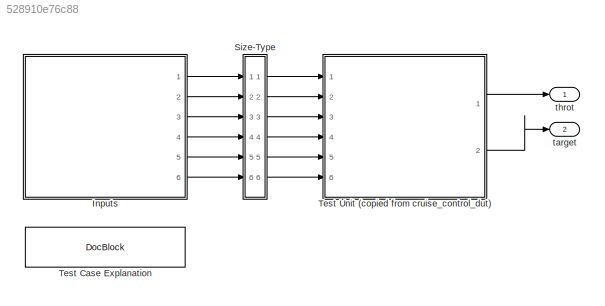
MODEL slx_528910e76c88
KIND model
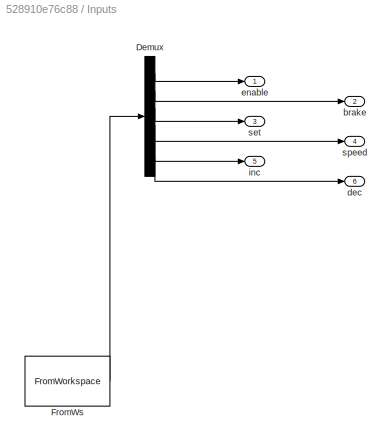
BLOCK [SubSystem] Inputs
  ClipboardFcn = sigbuilder_block('clipboard');
  CloseFcn = sigbuilder_block('close');
  ContinueFcn = sigbuilder_block('continue');
  CopyFcn = sigbuilder_block('copy');
  DeleteFcn = sigbuilder_block('delete');
  LoadFcn = sigbuilder_block('load');
  MaskHideContents = on
  ModelCloseFcn = sigbuilder_block('modelClose');
  NameChangeFcn = sigbuilder_block('namechange');
  OpenFcn = sigbuilder_block('open');
  PauseFcn = sigbuilder_block('pause');
  Ports = [0, 6]
  PreSaveFcn = sigbuilder_block('preSave');
  RequestExecContextInheritance = off
  StartFcn = sigbuilder_block('start');
  StopFcn = sigbuilder_block('stop');
  Tag = STV Subsys
BLOCK [Demux] Inputs/Demux
  Outputs = 6
  Ports = [1, 6]
  Tag = STV Demux
BLOCK [FromWorkspace] Inputs/FromWs
  SampleTime = 0
  Tag = STV FromWs
  VariableName = tuvar
BLOCK [Outport] Inputs/brake
  IconDisplay = Port number
  Port = 2
  Tag = STV Outport
BLOCK [Outport] Inputs/dec
  IconDisplay = Port number
  Port = 6
  Tag = STV Outport
BLOCK [Outport] Inputs/enable
  IconDisplay = Port number
  Tag = STV Outport
BLOCK [Outport] Inputs/inc
  IconDisplay = Port number
  Port = 5
  Tag = STV Outport
BLOCK [Outport] Inputs/set
  IconDisplay = Port number
  Port = 3
  Tag = STV Outport
BLOCK [Outport] Inputs/speed
  IconDisplay = Port number
  Port = 4
  Tag = STV Outport
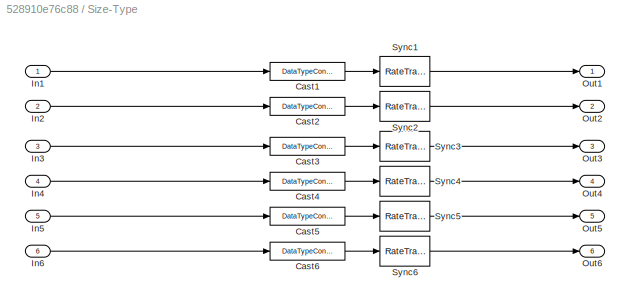
BLOCK [SubSystem] Size-Type
  Ports = [6, 6]
  RequestExecContextInheritance = off
BLOCK [DataTypeConversion] Size-Type/Cast1
  OutDataTypeStr = boolean
  RndMeth = Nearest
BLOCK [DataTypeConversion] Size-Type/Cast2
  OutDataTypeStr = boolean
  RndMeth = Nearest
BLOCK [DataTypeConversion] Size-Type/Cast3
  OutDataTypeStr = boolean
  RndMeth = Nearest
BLOCK [DataTypeConversion] Size-Type/Cast4
  OutDataTypeStr = double
  RndMeth = Nearest
BLOCK [DataTypeConversion] Size-Type/Cast5
  OutDataTypeStr = boolean
  RndMeth = Nearest
BLOCK [DataTypeConversion] Size-Type/Cast6
  OutDataTypeStr = boolean
  RndMeth = Nearest
BLOCK [Inport] Size-Type/In1
  IconDisplay = Port number
BLOCK [Inport] Size-Type/In2
  IconDisplay = Port number
  Port = 2
BLOCK [Inport] Size-Type/In3
  IconDisplay = Port number
  Port = 3
BLOCK [Inport] Size-Type/In4
  IconDisplay = Port number
  Port = 4
BLOCK [Inport] Size-Type/In5
  IconDisplay = Port number
  Port = 5
BLOCK [Inport] Size-Type/In6
  IconDisplay = Port number
  Port = 6
BLOCK [Outport] Size-Type/Out1
  IconDisplay = Port number
BLOCK [Outport] Size-Type/Out2
  IconDisplay = Port number
  Port = 2
BLOCK [Outport] Size-Type/Out3
  IconDisplay = Port number
  Port = 3
BLOCK [Outport] Size-Type/Out4
  IconDisplay = Port number
  Port = 4
BLOCK [Outport] Size-Type/Out5
  IconDisplay = Port number
  Port = 5
BLOCK [Outport] Size-Type/Out6
  IconDisplay = Port number
  Port = 6
BLOCK [RateTransition] Size-Type/Sync1
  OutPortSampleTime = [0.01,0]
BLOCK [RateTransition] Size-Type/Sync2
  OutPortSampleTime = [0.01,0]
BLOCK [RateTransition] Size-Type/Sync3
  OutPortSampleTime = [0.01,0]
BLOCK [RateTransition] Size-Type/Sync4
  OutPortSampleTime = [0.01,0]
BLOCK [RateTransition] Size-Type/Sync5
  OutPortSampleTime = [0.01,0]
BLOCK [RateTransition] Size-Type/Sync6
  OutPortSampleTime = [0.01,0]
BLOCK [Reference] Test Case Explanation  REF=simulink/Model-Wide
Utilities/DocBlock
  DocumentType = Text
  Ports = []
  SourceBlock = simulink/Model-Wide\nUtilities/DocBlock
  SourceType = DocBlock
  UserDataPersistent = on
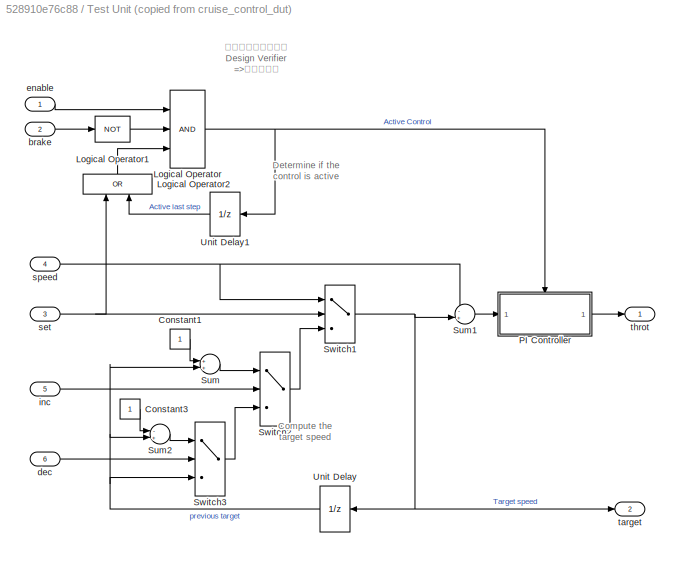
BLOCK [SubSystem] Test Unit (copied from cruise_control_dut)
  Permissions = ReadOnly
  Ports = [6, 2]
  RequestExecContextInheritance = off
BLOCK [Constant] Test Unit (copied from cruise_control_dut)/Constant1
BLOCK [Constant] Test Unit (copied from cruise_control_dut)/Constant3
BLOCK [Logic] Test Unit (copied from cruise_control_dut)/Logical Operator
  AllPortsSameDT = off
  Inputs = 3
  OutDataTypeStr = boolean
  Ports = [3, 1]
BLOCK [Logic] Test Unit (copied from cruise_control_dut)/Logical Operator1
  AllPortsSameDT = off
  Operator = NOT
  OutDataTypeStr = boolean
  Ports = [1, 1]
BLOCK [Logic] Test Unit (copied from cruise_control_dut)/Logical Operator2
  AllPortsSameDT = off
  Operator = OR
  OutDataTypeStr = boolean
  Ports = [2, 1]
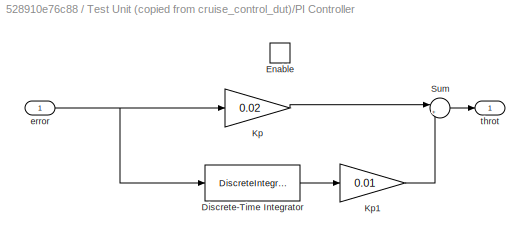
BLOCK [SubSystem] Test Unit (copied from cruise_control_dut)/PI Controller
  Ports = [1, 1, 1]
  RequestExecContextInheritance = off
BLOCK [DiscreteIntegrator] Test Unit (copied from cruise_control_dut)/PI Controller/Discrete-Time Integrator
  LimitOutput = on
  LowerSaturationLimit = -5
  Ports = [1, 1]
  SampleTime = 0.01
  UpperSaturationLimit = 5
BLOCK [EnablePort] Test Unit (copied from cruise_control_dut)/PI Controller/Enable
  Ports = []
BLOCK [Gain] Test Unit (copied from cruise_control_dut)/PI Controller/Kp
  Gain = 0.02
  OutDataTypeStr = Inherit: Inherit via internal rule
  ParamDataTypeStr = Inherit: Inherit via internal rule
  SaturateOnIntegerOverflow = off
BLOCK [Gain] Test Unit (copied from cruise_control_dut)/PI Controller/Kp1
  Gain = 0.01
  OutDataTypeStr = Inherit: Inherit via internal rule
  ParamDataTypeStr = Inherit: Inherit via internal rule
  SaturateOnIntegerOverflow = off
BLOCK [Sum] Test Unit (copied from cruise_control_dut)/PI Controller/Sum
  IconShape = round
  InputSameDT = off
  Inputs = |++
  OutDataTypeStr = Inherit: Inherit via internal rule
  Ports = [2, 1]
  SaturateOnIntegerOverflow = off
BLOCK [Inport] Test Unit (copied from cruise_control_dut)/PI Controller/error
  IconDisplay = Port number
BLOCK [Outport] Test Unit (copied from cruise_control_dut)/PI Controller/throt
  IconDisplay = Port number
  InitialOutput = 0
BLOCK [Sum] Test Unit (copied from cruise_control_dut)/Sum
  IconShape = round
  InputSameDT = off
  Inputs = ++|
  OutDataTypeStr = Inherit: Inherit via internal rule
  Ports = [2, 1]
  SaturateOnIntegerOverflow = off
BLOCK [Sum] Test Unit (copied from cruise_control_dut)/Sum1
  IconShape = round
  InputSameDT = off
  Inputs = -+|
  OutDataTypeStr = Inherit: Inherit via internal rule
  Ports = [2, 1]
  SaturateOnIntegerOverflow = off
BLOCK [Sum] Test Unit (copied from cruise_control_dut)/Sum2
  IconShape = round
  InputSameDT = off
  Inputs = -+|
  OutDataTypeStr = Inherit: Inherit via internal rule
  Ports = [2, 1]
  SaturateOnIntegerOverflow = off
BLOCK [Switch] Test Unit (copied from cruise_control_dut)/Switch1
  Criteria = u2 ~= 0
  InputSameDT = off
  SaturateOnIntegerOverflow = off
BLOCK [Switch] Test Unit (copied from cruise_control_dut)/Switch2
  Criteria = u2 ~= 0
  InputSameDT = off
  SaturateOnIntegerOverflow = off
BLOCK [Switch] Test Unit (copied from cruise_control_dut)/Switch3
  Criteria = u2 ~= 0
  InputSameDT = off
  SaturateOnIntegerOverflow = off
BLOCK [UnitDelay] Test Unit (copied from cruise_control_dut)/Unit Delay
  SampleTime = 0.01
BLOCK [UnitDelay] Test Unit (copied from cruise_control_dut)/Unit Delay1
  SampleTime = 0.01
BLOCK [Inport] Test Unit (copied from cruise_control_dut)/brake
  IconDisplay = Port number
  OutDataTypeStr = boolean
  Port = 2
BLOCK [Inport] Test Unit (copied from cruise_control_dut)/dec
  IconDisplay = Port number
  OutDataTypeStr = boolean
  Port = 6
BLOCK [Inport] Test Unit (copied from cruise_control_dut)/enable
  IconDisplay = Port number
  OutDataTypeStr = boolean
BLOCK [Inport] Test Unit (copied from cruise_control_dut)/inc
  IconDisplay = Port number
  OutDataTypeStr = boolean
  Port = 5
BLOCK [Inport] Test Unit (copied from cruise_control_dut)/set
  IconDisplay = Port number
  OutDataTypeStr = boolean
  Port = 3
BLOCK [Inport] Test Unit (copied from cruise_control_dut)/speed
  IconDisplay = Port number
  OutDataTypeStr = double
  Port = 4
BLOCK [Outport] Test Unit (copied from cruise_control_dut)/target
  IconDisplay = Port number
  Port = 2
BLOCK [Outport] Test Unit (copied from cruise_control_dut)/throt
  IconDisplay = Port number
BLOCK [Outport] target
  IconDisplay = Port number
  Port = 2
BLOCK [Outport] throt
  IconDisplay = Port number
ANNOTATION Test Unit (copied from cruise_control_dut): Compute the target speed
ANNOTATION Test Unit (copied from cruise_control_dut): Determine if the control is active
ANNOTATION Test Unit (copied from cruise_control_dut): ツールメニューから Design Verifier =>テスト生成
LINE Inputs/Demux:1 -> Inputs/enable:1
LINE Inputs/Demux:2 -> Inputs/brake:1
LINE Inputs/Demux:3 -> Inputs/set:1
LINE Inputs/Demux:4 -> Inputs/speed:1
LINE Inputs/Demux:5 -> Inputs/inc:1
LINE Inputs/Demux:6 -> Inputs/dec:1
LINE Inputs/FromWs:1 -> Inputs/Demux:1
LINE Inputs:1 -> Size-Type:1
LINE Inputs:2 -> Size-Type:2
LINE Inputs:3 -> Size-Type:3
LINE Inputs:4 -> Size-Type:4
LINE Inputs:5 -> Size-Type:5
LINE Inputs:6 -> Size-Type:6
LINE Size-Type/Cast1:1 -> Size-Type/Sync1:1
LINE Size-Type/Cast2:1 -> Size-Type/Sync2:1
LINE Size-Type/Cast3:1 -> Size-Type/Sync3:1
LINE Size-Type/Cast4:1 -> Size-Type/Sync4:1
LINE Size-Type/Cast5:1 -> Size-Type/Sync5:1
LINE Size-Type/Cast6:1 -> Size-Type/Sync6:1
LINE Size-Type/In1:1 -> Size-Type/Cast1:1
LINE Size-Type/In2:1 -> Size-Type/Cast2:1
LINE Size-Type/In3:1 -> Size-Type/Cast3:1
LINE Size-Type/In4:1 -> Size-Type/Cast4:1
LINE Size-Type/In5:1 -> Size-Type/Cast5:1
LINE Size-Type/In6:1 -> Size-Type/Cast6:1
LINE Size-Type/Sync1:1 -> Size-Type/Out1:1
LINE Size-Type/Sync2:1 -> Size-Type/Out2:1
LINE Size-Type/Sync3:1 -> Size-Type/Out3:1
LINE Size-Type/Sync4:1 -> Size-Type/Out4:1
LINE Size-Type/Sync5:1 -> Size-Type/Out5:1
LINE Size-Type/Sync6:1 -> Size-Type/Out6:1
LINE Size-Type:1 -> Test Unit (copied from cruise_control_dut):1
LINE Size-Type:2 -> Test Unit (copied from cruise_control_dut):2
LINE Size-Type:3 -> Test Unit (copied from cruise_control_dut):3
LINE Size-Type:4 -> Test Unit (copied from cruise_control_dut):4
LINE Size-Type:5 -> Test Unit (copied from cruise_control_dut):5
LINE Size-Type:6 -> Test Unit (copied from cruise_control_dut):6
LINE Test Unit (copied from cruise_control_dut)/Constant1:1 -> Test Unit (copied from cruise_control_dut)/Sum:1
LINE Test Unit (copied from cruise_control_dut)/Constant3:1 -> Test Unit (copied from cruise_control_dut)/Sum2:1
LINE Test Unit (copied from cruise_control_dut)/Logical Operator1:1 -> Test Unit (copied from cruise_control_dut)/Logical Operator:2
LINE Test Unit (copied from cruise_control_dut)/Logical Operator2:1 -> Test Unit (copied from cruise_control_dut)/Logical Operator:3
NET Test Unit (copied from cruise_control_dut)/Logical Operator:1 -> Test Unit (copied from cruise_control_dut)/PI Controller:enable, Test Unit (copied from cruise_control_dut)/Unit Delay1:1
LINE Test Unit (copied from cruise_control_dut)/PI Controller/Discrete-Time Integrator:1 -> Test Unit (copied from cruise_control_dut)/PI Controller/Kp1:1
LINE Test Unit (copied from cruise_control_dut)/PI Controller/Kp1:1 -> Test Unit (copied from cruise_control_dut)/PI Controller/Sum:2
LINE Test Unit (copied from cruise_control_dut)/PI Controller/Kp:1 -> Test Unit (copied from cruise_control_dut)/PI Controller/Sum:1
LINE Test Unit (copied from cruise_control_dut)/PI Controller/Sum:1 -> Test Unit (copied from cruise_control_dut)/PI Controller/throt:1
NET Test Unit (copied from cruise_control_dut)/PI Controller/error:1 -> Test Unit (copied from cruise_control_dut)/PI Controller/Discrete-Time Integrator:1, Test Unit (copied from cruise_control_dut)/PI Controller/Kp:1
LINE Test Unit (copied from cruise_control_dut)/PI Controller:1 -> Test Unit (copied from cruise_control_dut)/throt:1
LINE Test Unit (copied from cruise_control_dut)/Sum1:1 -> Test Unit (copied from cruise_control_dut)/PI Controller:1
LINE Test Unit (copied from cruise_control_dut)/Sum2:1 -> Test Unit (copied from cruise_control_dut)/Switch3:1
LINE Test Unit (copied from cruise_control_dut)/Sum:1 -> Test Unit (copied from cruise_control_dut)/Switch2:1
NET Test Unit (copied from cruise_control_dut)/Switch1:1 -> Test Unit (copied from cruise_control_dut)/Sum1:2, Test Unit (copied from cruise_control_dut)/Unit Delay:1, Test Unit (copied from cruise_control_dut)/target:1
LINE Test Unit (copied from cruise_control_dut)/Switch2:1 -> Test Unit (copied from cruise_control_dut)/Switch1:3
LINE Test Unit (copied from cruise_control_dut)/Switch3:1 -> Test Unit (copied from cruise_control_dut)/Switch2:3
LINE Test Unit (copied from cruise_control_dut)/Unit Delay1:1 -> Test Unit (copied from cruise_control_dut)/Logical Operator2:2
NET Test Unit (copied from cruise_control_dut)/Unit Delay:1 -> Test Unit (copied from cruise_control_dut)/Sum2:2, Test Unit (copied from cruise_control_dut)/Sum:2, Test Unit (copied from cruise_control_dut)/Switch3:3
LINE Test Unit (copied from cruise_control_dut)/brake:1 -> Test Unit (copied from cruise_control_dut)/Logical Operator1:1
LINE Test Unit (copied from cruise_control_dut)/dec:1 -> Test Unit (copied from cruise_control_dut)/Switch3:2
LINE Test Unit (copied from cruise_control_dut)/enable:1 -> Test Unit (copied from cruise_control_dut)/Logical Operator:1
LINE Test Unit (copied from cruise_control_dut)/inc:1 -> Test Unit (copied from cruise_control_dut)/Switch2:2
NET Test Unit (copied from cruise_control_dut)/set:1 -> Test Unit (copied from cruise_control_dut)/Logical Operator2:1, Test Unit (copied from cruise_control_dut)/Switch1:2
NET Test Unit (copied from cruise_control_dut)/speed:1 -> Test Unit (copied from cruise_control_dut)/Sum1:1, Test Unit (copied from cruise_control_dut)/Switch1:1
LINE Test Unit (copied from cruise_control_dut):1 -> throt:1
LINE Test Unit (copied from cruise_control_dut):2 -> target:1
note: NET lines group one-source signal fan-out (src -> all destinations, sorted); 1:1 wires keep LINE
